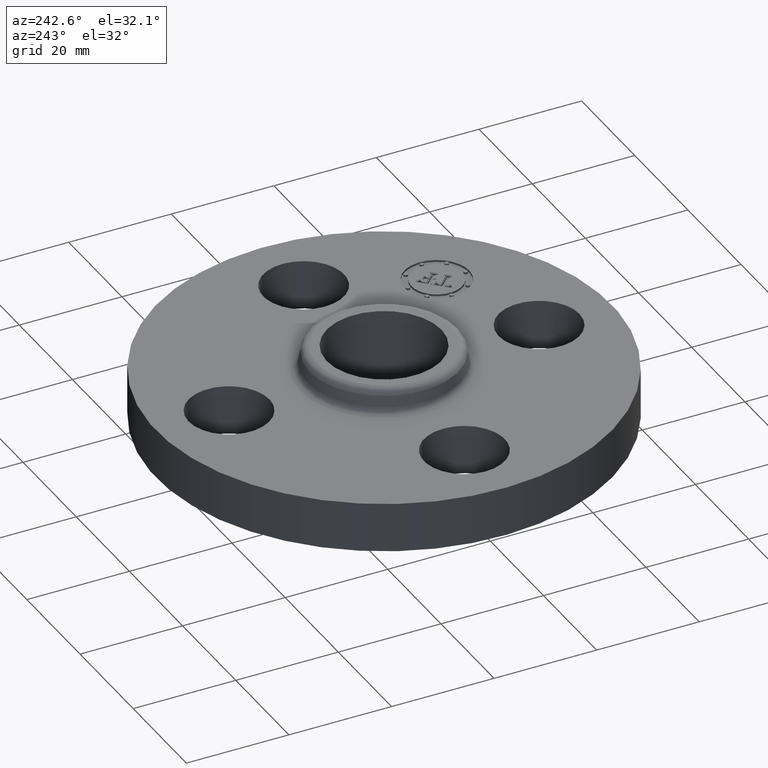
[diagram: clean part render]
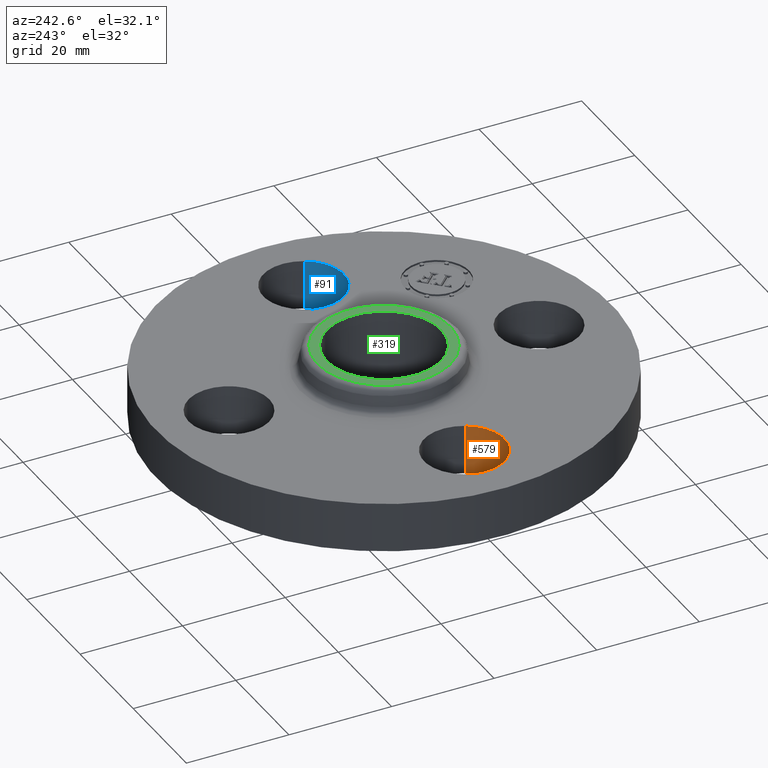
[diagram: same view with three faces highlighted in distinct colors, each labeled with its STEP entity id]
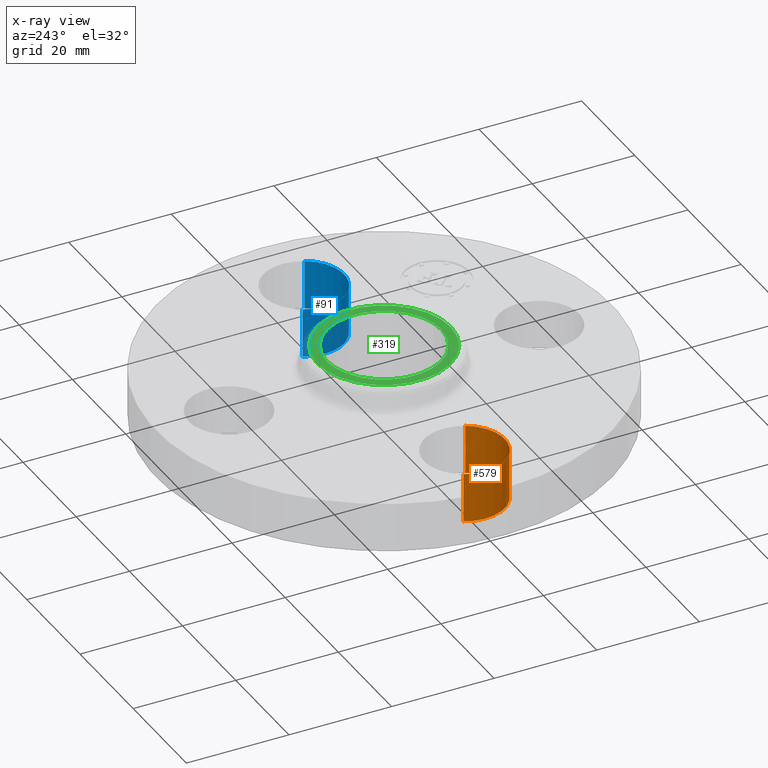
[diagram: x-ray of the same camera — body ghosted, the three highlighted faces saturated]
A machine part, auxiliary view with three faces highlighted in distinct colors.
The next image is the same camera in x-ray (body ghosted, the three faces saturated) — at least one of them is partly hidden behind the body in this view.
Their STEP definitions:

[orange] entity #579 — the highlighted cylindrical surface (partial cylindrical patch) has radius 7.874 mm, axis along (-0, 0, -1).
#471=AXIS2_PLACEMENT_3D('Circle Axis2P3D',#469,#470,$) ;
#552=AXIS2_PLACEMENT_3D('Cylinder Axis2P3D',#549,#550,#551) ;
#570=AXIS2_PLACEMENT_3D('Circle Axis2P3D',#568,#569,$) ;
#469=CARTESIAN_POINT('Axis2P3D Location',(-1.19,-1.39870617276E-016,0.)) ;
#473=CARTESIAN_POINT('Vertex',(-0.917949405818,-0.148621916968,0.)) ;
#475=CARTESIAN_POINT('Vertex',(-1.46205059419,0.148621916968,-6.99353086378E-017)) ;
#549=CARTESIAN_POINT('Axis2P3D Location',(-1.19,-1.45732969099E-016,0.376062992128)) ;
#554=CARTESIAN_POINT('Line Origine',(-0.917949405818,-0.148621916968,0.190000000001)) ;
#558=CARTESIAN_POINT('Vertex',(-0.917949405818,-0.148621916968,0.380000000002)) ;
#561=CARTESIAN_POINT('Line Origine',(-1.46205059419,0.148621916968,0.190000000001)) ;
#565=CARTESIAN_POINT('Vertex',(-1.46205059419,0.148621916968,0.380000000002)) ;
#568=CARTESIAN_POINT('Axis2P3D Location',(-1.19,-1.45732969099E-016,0.380000000002)) ;
#470=DIRECTION('Axis2P3D Direction',(0.,0.,-0.0393700787402)) ;
#550=DIRECTION('Axis2P3D Direction',(-0.,0.,-0.0393700787402)) ;
#551=DIRECTION('Axis2P3D XDirection',(-0.0345504945626,0.0188750212049,0.)) ;
#555=DIRECTION('Vector Direction',(0.,0.,-0.0393700787402)) ;
#562=DIRECTION('Vector Direction',(0.,0.,-0.0393700787402)) ;
#569=DIRECTION('Axis2P3D Direction',(-0.,0.,-0.0393700787402)) ;
#556=VECTOR('Line Direction',#555,0.0393700787402) ;
#563=VECTOR('Line Direction',#562,0.0393700787402) ;
#574=ORIENTED_EDGE('',*,*,#560,.F.) ;
#575=ORIENTED_EDGE('',*,*,#477,.T.) ;
#576=ORIENTED_EDGE('',*,*,#567,.T.) ;
#577=ORIENTED_EDGE('',*,*,#572,.F.) ;
#579=ADVANCED_FACE('PartBody',(#578),#553,.F.) ;
#472=CIRCLE('generated circle',#471,0.310000000001) ;
#571=CIRCLE('generated circle',#570,0.310000000001) ;
#553=CYLINDRICAL_SURFACE('generated cylinder',#552,0.310000000001) ;
#477=EDGE_CURVE('',#474,#476,#472,.T.) ;
#560=EDGE_CURVE('',#474,#559,#557,.F.) ;
#567=EDGE_CURVE('',#476,#566,#564,.F.) ;
#572=EDGE_CURVE('',#559,#566,#571,.T.) ;
#573=EDGE_LOOP('',(#574,#575,#576,#577)) ;
#578=FACE_OUTER_BOUND('',#573,.T.) ;
#557=LINE('Line',#554,#556) ;
#564=LINE('Line',#561,#563) ;
#474=VERTEX_POINT('',#473) ;
#476=VERTEX_POINT('',#475) ;
#559=VERTEX_POINT('',#558) ;
#566=VERTEX_POINT('',#565) ;

[blue] entity #91 — the highlighted cylindrical surface (partial cylindrical patch) has radius 7.874 mm, axis along (0, -0, -1).
#38=AXIS2_PLACEMENT_3D('Cylinder Axis2P3D',#35,#36,#37) ;
#77=AXIS2_PLACEMENT_3D('Circle Axis2P3D',#75,#76,$) ;
#82=AXIS2_PLACEMENT_3D('Circle Axis2P3D',#80,#81,$) ;
#35=CARTESIAN_POINT('Axis2P3D Location',(1.19,0.,0.376062992128)) ;
#40=CARTESIAN_POINT('Line Origine',(0.917949405818,0.148621916968,0.190000000001)) ;
#44=CARTESIAN_POINT('Vertex',(0.917949405818,0.148621916968,6.99353086378E-017)) ;
#46=CARTESIAN_POINT('Vertex',(0.917949405818,0.148621916968,0.380000000002)) ;
#53=CARTESIAN_POINT('Vertex',(1.46205059419,-0.148621916968,6.99353086378E-017)) ;
#56=CARTESIAN_POINT('Line Origine',(1.46205059419,-0.148621916968,0.190000000001)) ;
#60=CARTESIAN_POINT('Vertex',(1.46205059419,-0.148621916968,0.380000000002)) ;
#75=CARTESIAN_POINT('Axis2P3D Location',(1.19,0.,0.)) ;
#80=CARTESIAN_POINT('Axis2P3D Location',(1.19,0.,0.380000000002)) ;
#36=DIRECTION('Axis2P3D Direction',(0.,-0.,-0.0393700787402)) ;
#37=DIRECTION('Axis2P3D XDirection',(0.0345504945626,-0.0188750212049,0.)) ;
#41=DIRECTION('Vector Direction',(0.,0.,-0.0393700787402)) ;
#57=DIRECTION('Vector Direction',(0.,0.,-0.0393700787402)) ;
#76=DIRECTION('Axis2P3D Direction',(0.,-0.,-0.0393700787402)) ;
#81=DIRECTION('Axis2P3D Direction',(0.,-0.,-0.0393700787402)) ;
#42=VECTOR('Line Direction',#41,0.0393700787402) ;
#58=VECTOR('Line Direction',#57,0.0393700787402) ;
#86=ORIENTED_EDGE('',*,*,#62,.F.) ;
#87=ORIENTED_EDGE('',*,*,#79,.T.) ;
#88=ORIENTED_EDGE('',*,*,#48,.T.) ;
#89=ORIENTED_EDGE('',*,*,#84,.F.) ;
#91=ADVANCED_FACE('PartBody',(#90),#39,.F.) ;
#78=CIRCLE('generated circle',#77,0.310000000001) ;
#83=CIRCLE('generated circle',#82,0.310000000001) ;
#39=CYLINDRICAL_SURFACE('generated cylinder',#38,0.310000000001) ;
#48=EDGE_CURVE('',#45,#47,#43,.F.) ;
#62=EDGE_CURVE('',#54,#61,#59,.F.) ;
#79=EDGE_CURVE('',#54,#45,#78,.T.) ;
#84=EDGE_CURVE('',#61,#47,#83,.T.) ;
#85=EDGE_LOOP('',(#86,#87,#88,#89)) ;
#90=FACE_OUTER_BOUND('',#85,.T.) ;
#43=LINE('Line',#40,#42) ;
#59=LINE('Line',#56,#58) ;
#45=VERTEX_POINT('',#44) ;
#47=VERTEX_POINT('',#46) ;
#54=VERTEX_POINT('',#53) ;
#61=VERTEX_POINT('',#60) ;

[green] entity #319 — the highlighted planar face has unit normal (0, 0, -1).
#263=AXIS2_PLACEMENT_3D('Circle Axis2P3D',#261,#262,$) ;
#282=AXIS2_PLACEMENT_3D('Circle Axis2P3D',#280,#281,$) ;
#295=AXIS2_PLACEMENT_3D('Plane Axis2P3D',#292,#293,#294) ;
#303=AXIS2_PLACEMENT_3D('Circle Axis2P3D',#301,#302,$) ;
#312=AXIS2_PLACEMENT_3D('Circle Axis2P3D',#310,#311,$) ;
#258=CARTESIAN_POINT('Vertex',(0.245904629528,0.450125405063,0.560000000002)) ;
#261=CARTESIAN_POINT('Axis2P3D Location',(0.,0.,0.560000000002)) ;
#265=CARTESIAN_POINT('Vertex',(-0.245904629528,-0.450125405063,0.560000000002)) ;
#280=CARTESIAN_POINT('Axis2P3D Location',(0.,0.,0.560000000002)) ;
#292=CARTESIAN_POINT('Axis2P3D Location',(0.,0.512915165604,0.560000000002)) ;
#301=CARTESIAN_POINT('Axis2P3D Location',(0.,0.,0.560000000002)) ;
#305=CARTESIAN_POINT('Vertex',(-0.210947236987,-0.386136327233,0.560000000002)) ;
#307=CARTESIAN_POINT('Vertex',(0.210947236987,0.386136327233,0.560000000002)) ;
#310=CARTESIAN_POINT('Axis2P3D Location',(0.,0.,0.560000000002)) ;
#262=DIRECTION('Axis2P3D Direction',(0.,0.,-0.0393700787402)) ;
#281=DIRECTION('Axis2P3D Direction',(0.,0.,-0.0393700787402)) ;
#293=DIRECTION('Axis2P3D Direction',(0.,0.,-0.0393700787402)) ;
#294=DIRECTION('Axis2P3D XDirection',(0.0393700787402,0.,0.)) ;
#302=DIRECTION('Axis2P3D Direction',(0.,0.,-0.0393700787402)) ;
#311=DIRECTION('Axis2P3D Direction',(0.,0.,-0.0393700787402)) ;
#298=ORIENTED_EDGE('',*,*,#267,.F.) ;
#299=ORIENTED_EDGE('',*,*,#284,.F.) ;
#316=ORIENTED_EDGE('',*,*,#309,.T.) ;
#317=ORIENTED_EDGE('',*,*,#314,.T.) ;
#318=FACE_BOUND('',#315,.T.) ;
#319=ADVANCED_FACE('PartBody',(#300,#318),#296,.F.) ;
#264=CIRCLE('generated circle',#263,0.512915165604) ;
#283=CIRCLE('generated circle',#282,0.512915165604) ;
#304=CIRCLE('generated circle',#303,0.440000000002) ;
#313=CIRCLE('generated circle',#312,0.440000000002) ;
#267=EDGE_CURVE('',#259,#266,#264,.T.) ;
#284=EDGE_CURVE('',#266,#259,#283,.T.) ;
#309=EDGE_CURVE('',#306,#308,#304,.T.) ;
#314=EDGE_CURVE('',#308,#306,#313,.T.) ;
#297=EDGE_LOOP('',(#298,#299)) ;
#315=EDGE_LOOP('',(#316,#317)) ;
#300=FACE_OUTER_BOUND('',#297,.T.) ;
#296=PLANE('',#295) ;
#259=VERTEX_POINT('',#258) ;
#266=VERTEX_POINT('',#265) ;
#306=VERTEX_POINT('',#305) ;
#308=VERTEX_POINT('',#307) ;